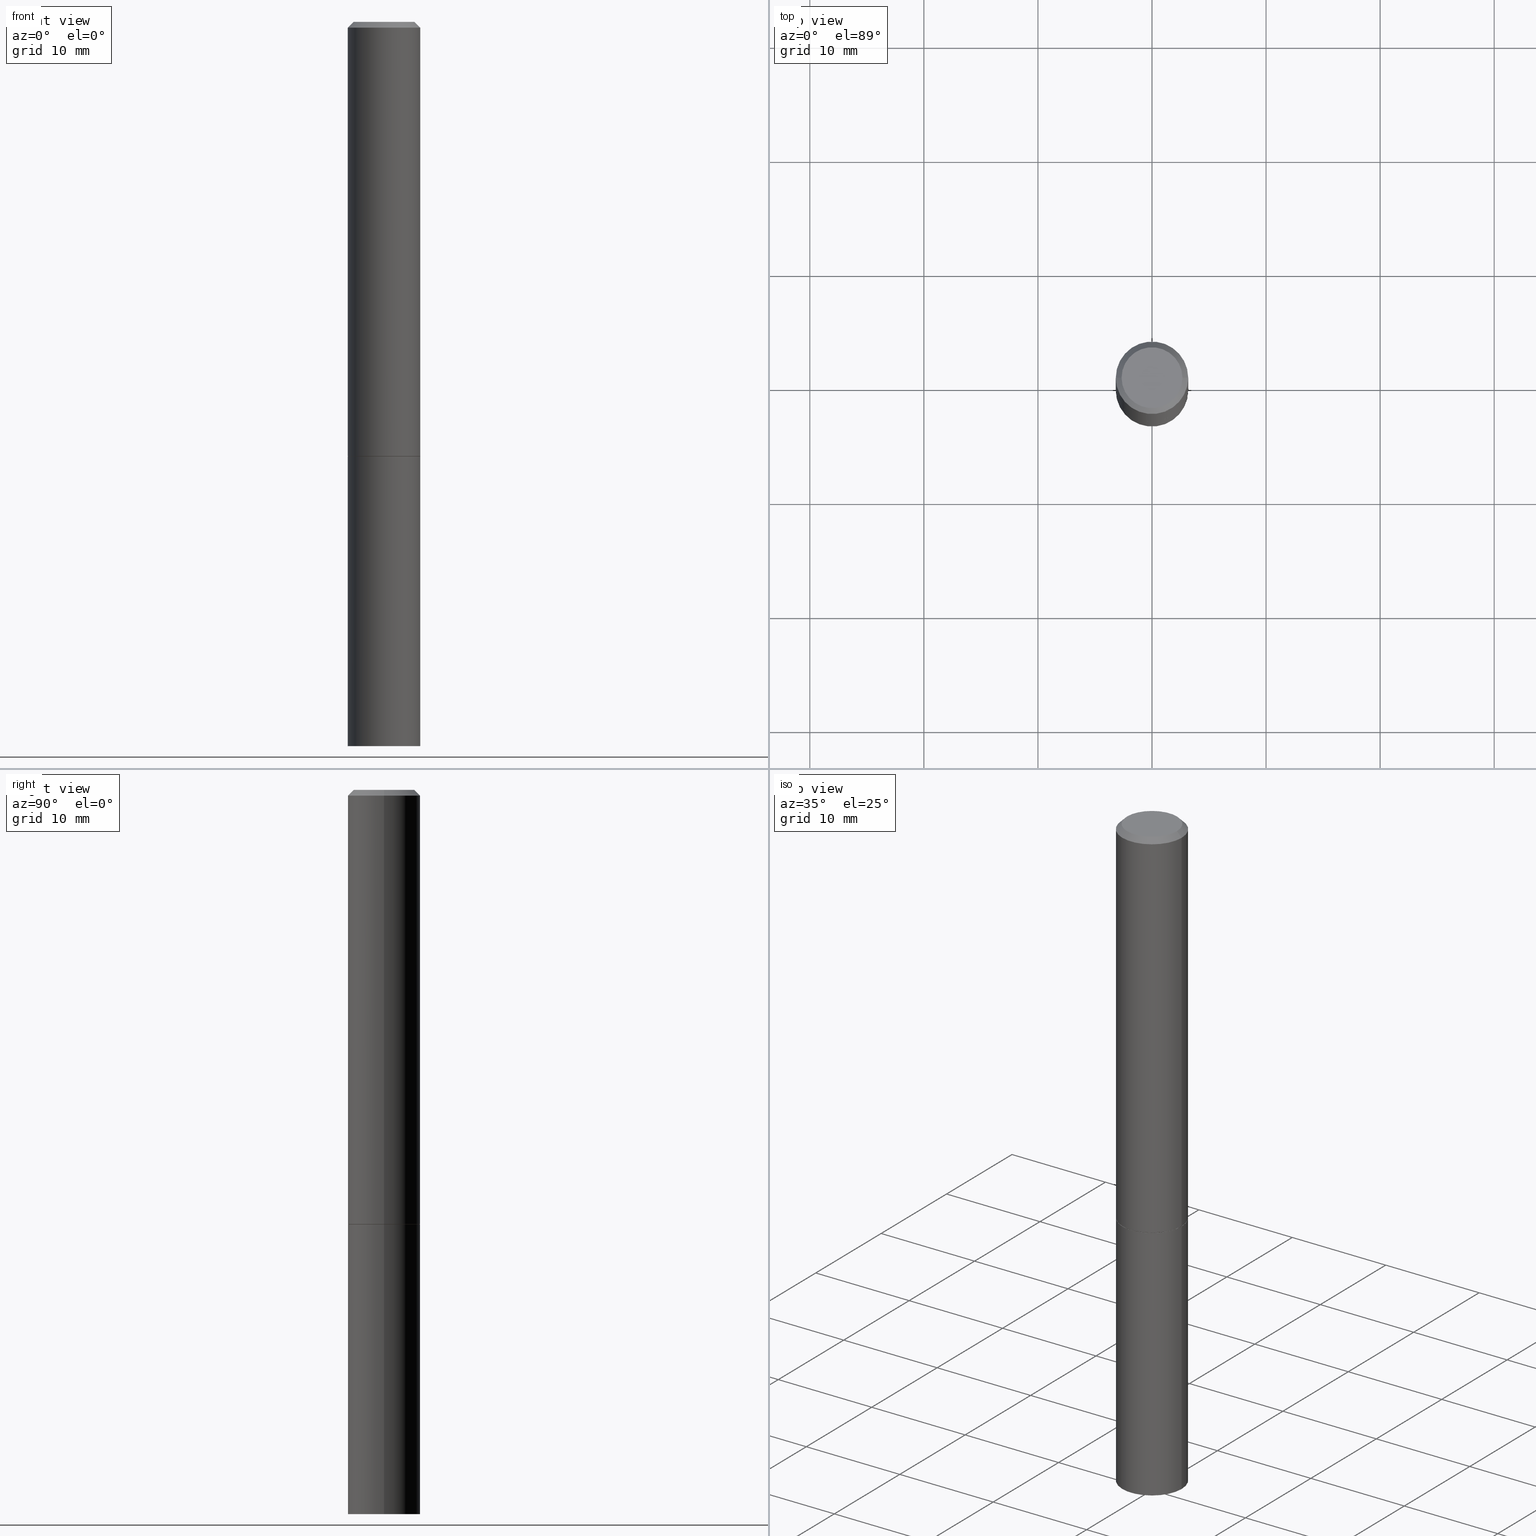
[diagram: canonical four-view strip — front | top / right | iso, engineering-drawing reading convention]
A machine part, canonical four-view strip (front | top / right | iso — engineering-drawing reading convention). The complete STEP part file that produces these views, byte-faithful:
ISO-10303-21;
HEADER;
FILE_DESCRIPTION (( 'STEP AP203' ),
    '1' );
FILE_NAME ('72954.STEP',
    '2024-02-29T04:47:56',
    ( '' ),
    ( '' ),
    'SwSTEP 2.0',
    'SolidWorks 2023',
    '' );
FILE_SCHEMA (( 'CONFIG_CONTROL_DESIGN' ));
ENDSEC;

DATA;
#1 = EDGE_CURVE ( 'NONE', #345, #261, #189, .T. ) ;
#2 = PRODUCT ( '72954', '72954', '', ( #91 ) ) ;
#3 = COORDINATED_UNIVERSAL_TIME_OFFSET ( 5, 0, .BEHIND. ) ;
#4 = EDGE_CURVE ( 'NONE', #39, #131, #83, .T. ) ;
#5 = CARTESIAN_POINT ( 'NONE',  ( 0.1239999999999999991, -6.103109380297813924E-15, -1.499999999999999778 ) ) ;
#6 = CIRCLE ( 'NONE', #320, 0.1239999999999999991 ) ;
#7 = VECTOR ( 'NONE', #357, 39.37007874015748143 ) ;
#8 = CARTESIAN_POINT ( 'NONE',  ( -0.1049999999999998018, 7.681258945454876027E-16, -1.707404996040689597E-17 ) ) ;
#9 = ORIENTED_EDGE ( 'NONE', *, *, #51, .F. ) ;
#10 = DIRECTION ( 'NONE',  ( -1.000000000000000000, 6.982962677686266711E-15, 0.000000000000000000 ) ) ;
#11 = ORIENTED_EDGE ( 'NONE', *, *, #192, .T. ) ;
#12 = VERTEX_POINT ( 'NONE', #104 ) ;
#13 = DESIGN_CONTEXT ( 'detailed design', #77, 'design' ) ;
#14 = AXIS2_PLACEMENT_3D ( 'NONE', #124, #313, #230 ) ;
#15 = FACE_OUTER_BOUND ( 'NONE', #132, .T. ) ;
#16 = ORIENTED_EDGE ( 'NONE', *, *, #236, .T. ) ;
#17 = CC_DESIGN_DATE_AND_TIME_ASSIGNMENT ( #312, #335, ( #157 ) ) ;
#18 = EDGE_CURVE ( 'NONE', #214, #176, #343, .T. ) ;
#19 = DIRECTION ( 'NONE',  ( 1.000000000000000000, -6.982962677686266711E-15, 4.876176775795935793E-29 ) ) ;
#20 = CARTESIAN_POINT ( 'NONE',  ( 0.1250000000000000000, -6.110092342975501516E-15, -1.500000000000000222 ) ) ;
#21 =( NAMED_UNIT ( * ) SI_UNIT ( $, .STERADIAN. ) SOLID_ANGLE_UNIT ( ) );
#22 = CARTESIAN_POINT ( 'NONE',  ( 0.000000000000000000, 0.000000000000000000, 0.000000000000000000 ) ) ;
#23 = AXIS2_PLACEMENT_3D ( 'NONE', #143, #360, #171 ) ;
#24 = CARTESIAN_POINT ( 'NONE',  ( 0.000000000000000000, 0.000000000000000000, 0.000000000000000000 ) ) ;
#25 = FACE_OUTER_BOUND ( 'NONE', #128, .T. ) ;
#26 = DIRECTION ( 'NONE',  ( 1.000000000000000000, -6.982962677686262766E-15, 0.000000000000000000 ) ) ;
#27 = ADVANCED_FACE ( 'NONE', ( #88 ), #95, .T. ) ;
#28 = AXIS2_PLACEMENT_3D ( 'NONE', #221, #113, #142 ) ;
#29 = CALENDAR_DATE ( 2024, 28, 2 ) ;
#30 = DIRECTION ( 'NONE',  ( -2.445468806185136597E-29, 3.491481338843145583E-15, 1.000000000000000000 ) ) ;
#31 = DATE_AND_TIME ( #153, #249 ) ;
#32 = PERSON_AND_ORGANIZATION ( #158, #36 ) ;
#33 = FACE_OUTER_BOUND ( 'NONE', #323, .T. ) ;
#34 = AXIS2_PLACEMENT_3D ( 'NONE', #300, #194, #250 ) ;
#35 = PERSON_AND_ORGANIZATION_ROLE ( 'creator' ) ;
#36 = ORGANIZATION ( 'UNSPECIFIED', 'UNSPECIFIED', '' ) ;
#37 = DIRECTION ( 'NONE',  ( 1.000000000000000000, -6.982962677686265922E-15, 4.876206205277402997E-29 ) ) ;
#38 = EDGE_LOOP ( 'NONE', ( #45, #270, #185, #207 ) ) ;
#39 = VERTEX_POINT ( 'NONE', #303 ) ;
#40 = ORIENTED_EDGE ( 'NONE', *, *, #4, .T. ) ;
#41 = UNCERTAINTY_MEASURE_WITH_UNIT (LENGTH_MEASURE( 1.000000000000000082E-05 ), #111, 'distance_accuracy_value', 'NONE');
#42 = CC_DESIGN_DATE_AND_TIME_ASSIGNMENT ( #31, #98, ( #301 ) ) ;
#43 = EDGE_LOOP ( 'NONE', ( #73, #210, #154, #347 ) ) ;
#44 = DIMENSIONAL_EXPONENTS ( 1.000000000000000000, 0.000000000000000000, 0.000000000000000000, 0.000000000000000000, 0.000000000000000000, 0.000000000000000000, 0.000000000000000000 ) ;
#45 = ORIENTED_EDGE ( 'NONE', *, *, #62, .T. ) ;
#46 = CLOSED_SHELL ( 'NONE', ( #184, #231, #27, #199, #243, #105, #241, #220 ) ) ;
#47 = FACE_OUTER_BOUND ( 'NONE', #38, .T. ) ;
#48 = CARTESIAN_POINT ( 'NONE',  ( 4.890937612370284544E-31, -6.982962677686307633E-17, -0.02000000000000004552 ) ) ;
#49 = DIRECTION ( 'NONE',  ( -2.438088387897960049E-29, 3.491481338843145188E-15, 1.000000000000000000 ) ) ;
#50 = DIRECTION ( 'NONE',  ( -2.445468806185136597E-29, 3.491481338843145583E-15, 1.000000000000000000 ) ) ;
#51 = EDGE_CURVE ( 'NONE', #131, #39, #275, .T. ) ;
#52 = PERSON_AND_ORGANIZATION_ROLE ( 'design_owner' ) ;
#53 = CARTESIAN_POINT ( 'NONE',  ( 3.668203209277704335E-29, -5.237222008264717388E-15, -1.499999999999999778 ) ) ;
#54 = ADVANCED_BREP_SHAPE_REPRESENTATION ( '72954', ( #204, #93, #321 ), #102 ) ;
#55 = DIRECTION ( 'NONE',  ( -2.445468806185136597E-29, 3.491481338843145583E-15, 1.000000000000000000 ) ) ;
#56 = DIRECTION ( 'NONE',  ( -1.000000000000000000, 6.982962677686265922E-15, -4.876176775795935793E-29 ) ) ;
#57 = CARTESIAN_POINT ( 'NONE',  ( 0.000000000000000000, 0.000000000000000000, 0.000000000000000000 ) ) ;
#58 = LINE ( 'NONE', #251, #139 ) ;
#59 = DIRECTION ( 'NONE',  ( -2.445468806185136597E-29, 3.491481338843145583E-15, 1.000000000000000000 ) ) ;
#60 = PRODUCT_DEFINITION_SHAPE ( 'NONE', 'NONE',  #301 ) ;
#61 = APPROVAL_STATUS ( 'not_yet_approved' ) ;
#62 = EDGE_CURVE ( 'NONE', #261, #66, #304, .T. ) ;
#63 = CIRCLE ( 'NONE', #254, 0.1249999999999997780 ) ;
#64 = CARTESIAN_POINT ( 'NONE',  ( -0.1250000000000000000, 8.881784197001252323E-16, -6.148668862818632227E-30 ) ) ;
#65 = LOCAL_TIME ( 23, 47, 56.00000000000000000, #179 ) ;
#66 = VERTEX_POINT ( 'NONE', #356 ) ;
#67 = APPROVAL_STATUS ( 'not_yet_approved' ) ;
#68 = LINE ( 'NONE', #363, #133 ) ;
#69 = AXIS2_PLACEMENT_3D ( 'NONE', #48, #252, #112 ) ;
#70 = AXIS2_PLACEMENT_3D ( 'NONE', #84, #276, #89 ) ;
#71 = PERSON_AND_ORGANIZATION ( #158, #36 ) ;
#72 = CARTESIAN_POINT ( 'NONE',  ( 4.890937612370284544E-31, -6.982962677686307633E-17, -0.02000000000000004552 ) ) ;
#73 = ORIENTED_EDGE ( 'NONE', *, *, #97, .T. ) ;
#74 = ORIENTED_EDGE ( 'NONE', *, *, #236, .F. ) ;
#75 = AXIS2_PLACEMENT_3D ( 'NONE', #114, #50, #273 ) ;
#76 = ADVANCED_FACE ( 'NONE', ( #215 ), #198, .T. ) ;
#77 = APPLICATION_CONTEXT ( 'configuration controlled 3d designs of mechanical parts and assemblies' ) ;
#78 = ORIENTED_EDGE ( 'NONE', *, *, #182, .F. ) ;
#79 = ORIENTED_EDGE ( 'NONE', *, *, #309, .F. ) ;
#80 = ADVANCED_FACE ( 'NONE', ( #25 ), #138, .T. ) ;
#81 = LINE ( 'NONE', #271, #7 ) ;
#82 = ORIENTED_EDGE ( 'NONE', *, *, #51, .T. ) ;
#83 = CIRCLE ( 'NONE', #359, 0.1250000000000000000 ) ;
#84 = CARTESIAN_POINT ( 'NONE',  ( 3.668203209277704895E-29, -5.237222008264718177E-15, -1.500000000000000222 ) ) ;
#85 = DIRECTION ( 'NONE',  ( 1.000000000000000000, -6.982962677686262766E-15, 0.000000000000000000 ) ) ;
#86 = PLANE ( 'NONE',  #339 ) ;
#87 = LINE ( 'NONE', #278, #191 ) ;
#88 = FACE_OUTER_BOUND ( 'NONE', #318, .T. ) ;
#89 = DIRECTION ( 'NONE',  ( 1.000000000000000000, -6.982962677686262766E-15, 0.000000000000000000 ) ) ;
#90 = CARTESIAN_POINT ( 'NONE',  ( 6.113672015462842613E-29, -8.728703347107864943E-15, -2.500000000000000000 ) ) ;
#91 = MECHANICAL_CONTEXT ( 'NONE', #262, 'mechanical' ) ;
#92 = APPROVAL_ROLE ( '' ) ;
#93 = MANIFOLD_SOLID_BREP ( 'Body-Move/Copy2[2]', #46 ) ;
#94 = ORIENTED_EDGE ( 'NONE', *, *, #126, .T. ) ;
#95 = CONICAL_SURFACE ( 'NONE', #69, 0.1249999999999997780, 0.7853981633974469467 ) ;
#96 = CC_DESIGN_APPROVAL ( #186, ( #157 ) ) ;
#97 = EDGE_CURVE ( 'NONE', #345, #239, #6, .T. ) ;
#98 = DATE_TIME_ROLE ( 'creation_date' ) ;
#99 = CARTESIAN_POINT ( 'NONE',  ( 0.1250000000000000000, -9.601573681818648281E-15, -2.500000000000000000 ) ) ;
#100 = DATE_AND_TIME ( #284, #201 ) ;
#101 = APPROVAL_DATE_TIME ( #181, #186 ) ;
#102 =( GEOMETRIC_REPRESENTATION_CONTEXT ( 3 ) GLOBAL_UNCERTAINTY_ASSIGNED_CONTEXT ( ( #41 ) ) GLOBAL_UNIT_ASSIGNED_CONTEXT ( ( #111, #298, #21 ) ) REPRESENTATION_CONTEXT ( 'NONE', 'WORKASPACE' ) );
#103 = DIRECTION ( 'NONE',  ( 0.7071067811866199593, -2.468850131083015945E-15, 0.7071067811864750752 ) ) ;
#104 = CARTESIAN_POINT ( 'NONE',  ( 0.1249999999999997780, -9.273918764983029686E-16, -0.02000000000000004552 ) ) ;
#105 = ADVANCED_FACE ( 'NONE', ( #354 ), #286, .T. ) ;
#106 = ORIENTED_EDGE ( 'NONE', *, *, #4, .F. ) ;
#107 = VECTOR ( 'NONE', #103, 39.37007874015748143 ) ;
#108 = VERTEX_POINT ( 'NONE', #20 ) ;
#109 = CYLINDRICAL_SURFACE ( 'NONE', #353, 0.1250000000000000000 ) ;
#110 = EDGE_LOOP ( 'NONE', ( #162, #257, #267, #255 ) ) ;
#111 =( CONVERSION_BASED_UNIT ( 'INCH', #348 ) LENGTH_UNIT ( ) NAMED_UNIT ( #44 ) );
#112 = DIRECTION ( 'NONE',  ( -1.000000000000000000, 6.982962677686266711E-15, 0.000000000000000000 ) ) ;
#113 = DIRECTION ( 'NONE',  ( -2.445468806185136597E-29, 3.491481338843145583E-15, 1.000000000000000000 ) ) ;
#114 = CARTESIAN_POINT ( 'NONE',  ( 3.665757740471519853E-29, -5.233730526925875958E-15, -1.499000000000000110 ) ) ;
#115 = CYLINDRICAL_SURFACE ( 'NONE', #28, 0.1249999999999999029 ) ;
#116 = CARTESIAN_POINT ( 'NONE',  ( 0.000000000000000000, 0.000000000000000000, 0.000000000000000000 ) ) ;
#117 = DIRECTION ( 'NONE',  ( -2.445468806185136597E-29, 3.491481338843145583E-15, 1.000000000000000000 ) ) ;
#118 = AXIS2_PLACEMENT_3D ( 'NONE', #22, #302, #351 ) ;
#119 = LINE ( 'NONE', #64, #269 ) ;
#120 = EDGE_CURVE ( 'NONE', #293, #108, #149, .T. ) ;
#121 = PERSON_AND_ORGANIZATION ( #158, #36 ) ;
#122 = AXIS2_PLACEMENT_3D ( 'NONE', #248, #328, #56 ) ;
#123 = CIRCLE ( 'NONE', #344, 0.1249999999999997780 ) ;
#124 = CARTESIAN_POINT ( 'NONE',  ( 8.728703347108198236E-16, 0.1249999999999947542, -1.500000000000000666 ) ) ;
#125 = COORDINATED_UNIVERSAL_TIME_OFFSET ( 5, 0, .BEHIND. ) ;
#126 = EDGE_CURVE ( 'NONE', #66, #261, #233, .T. ) ;
#127 = AXIS2_PLACEMENT_3D ( 'NONE', #342, #222, #307 ) ;
#128 = EDGE_LOOP ( 'NONE', ( #9, #106 ) ) ;
#129 = EDGE_CURVE ( 'NONE', #66, #317, #219, .T. ) ;
#130 = CARTESIAN_POINT ( 'NONE',  ( 6.113672015462842613E-29, -8.728703347107864943E-15, -2.500000000000000000 ) ) ;
#131 = VERTEX_POINT ( 'NONE', #99 ) ;
#132 = EDGE_LOOP ( 'NONE', ( #160, #292, #11, #16 ) ) ;
#133 = VECTOR ( 'NONE', #311, 39.37007874015748143 ) ;
#134 = ORIENTED_EDGE ( 'NONE', *, *, #182, .T. ) ;
#135 = ADVANCED_FACE ( 'NONE', ( #33 ), #280, .F. ) ;
#136 = CARTESIAN_POINT ( 'NONE',  ( 3.668203209277704895E-29, -5.237222008264718177E-15, -1.500000000000000222 ) ) ;
#137 = DIRECTION ( 'NONE',  ( 1.000000000000000000, -6.982962677686265922E-15, 4.876176775795935793E-29 ) ) ;
#138 = PLANE ( 'NONE',  #122 ) ;
#139 = VECTOR ( 'NONE', #329, 39.37007874015748143 ) ;
#140 = CARTESIAN_POINT ( 'NONE',  ( 4.890937612370284544E-31, -6.982962677686307633E-17, -0.02000000000000004552 ) ) ;
#141 = EDGE_CURVE ( 'NONE', #261, #12, #68, .T. ) ;
#142 = DIRECTION ( 'NONE',  ( 1.000000000000000000, -6.982962677686266711E-15, 4.876176775795935793E-29 ) ) ;
#143 = CARTESIAN_POINT ( 'NONE',  ( 3.665757740471519853E-29, -5.233730526925875958E-15, -1.499000000000000110 ) ) ;
#144 = CARTESIAN_POINT ( 'NONE',  ( -0.1249999999999999029, 8.881784197001245421E-16, -6.148668862818627323E-30 ) ) ;
#145 = DIRECTION ( 'NONE',  ( 1.000000000000000000, -6.982962677686262766E-15, 0.000000000000000000 ) ) ;
#146 = EDGE_LOOP ( 'NONE', ( #82, #322, #289, #288 ) ) ;
#147 = APPROVAL_ROLE ( '' ) ;
#148 = CIRCLE ( 'NONE', #216, 0.1049999999999998018 ) ;
#149 = CIRCLE ( 'NONE', #352, 0.1250000000000000000 ) ;
#150 = CARTESIAN_POINT ( 'NONE',  ( 3.668203209277704335E-29, -5.237222008264717388E-15, -1.499999999999999778 ) ) ;
#151 = LOCAL_TIME ( 23, 47, 56.00000000000000000, #232 ) ;
#152 = PERSON_AND_ORGANIZATION ( #158, #36 ) ;
#153 = CALENDAR_DATE ( 2024, 28, 2 ) ;
#154 = ORIENTED_EDGE ( 'NONE', *, *, #62, .F. ) ;
#155 = LINE ( 'NONE', #338, #163 ) ;
#156 = ORIENTED_EDGE ( 'NONE', *, *, #120, .F. ) ;
#157 = SECURITY_CLASSIFICATION ( '', '', #235 ) ;
#158 = PERSON ( 'UNSPECIFIED', 'UNSPECIFIED', 'UNSPECIFIED', ('UNSPECIFIED'), ('UNSPECIFIED'), ('UNSPECIFIED') ) ;
#159 = EDGE_CURVE ( 'NONE', #39, #293, #119, .T. ) ;
#160 = ORIENTED_EDGE ( 'NONE', *, *, #265, .F. ) ;
#161 = ORIENTED_EDGE ( 'NONE', *, *, #120, .T. ) ;
#162 = ORIENTED_EDGE ( 'NONE', *, *, #246, .F. ) ;
#163 = VECTOR ( 'NONE', #266, 39.37007874015748143 ) ;
#164 = APPROVAL_PERSON_ORGANIZATION ( #310, #188, #205 ) ;
#165 = CARTESIAN_POINT ( 'NONE',  ( -0.1250000000000000000, -6.094784257986165933E-15, -1.500000000000000222 ) ) ;
#166 = DIRECTION ( 'NONE',  ( 1.000000000000000000, -6.982962677686270655E-15, 0.000000000000000000 ) ) ;
#167 = DIRECTION ( 'NONE',  ( -2.445468806185136597E-29, 3.491481338843145583E-15, 1.000000000000000000 ) ) ;
#168 = CC_DESIGN_PERSON_AND_ORGANIZATION_ASSIGNMENT ( #299, #52, ( #2 ) ) ;
#169 = CARTESIAN_POINT ( 'NONE',  ( 4.890937612370284544E-31, -6.982962677686307633E-17, -0.02000000000000004552 ) ) ;
#170 = DIRECTION ( 'NONE',  ( 1.000000000000000000, -6.982962677686266711E-15, 0.000000000000000000 ) ) ;
#171 = DIRECTION ( 'NONE',  ( 1.000000000000000000, -6.982962677686262766E-15, 0.000000000000000000 ) ) ;
#172 = CARTESIAN_POINT ( 'NONE',  ( -0.1239999999999999991, -4.350850561573971550E-15, -1.499999999999999778 ) ) ;
#173 = DIRECTION ( 'NONE',  ( 1.000000000000000000, -6.982962677686262766E-15, 0.000000000000000000 ) ) ;
#174 = COORDINATED_UNIVERSAL_TIME_OFFSET ( 5, 0, .BEHIND. ) ;
#175 = DIRECTION ( 'NONE',  ( -2.445468806185136877E-29, 3.491481338843145188E-15, 1.000000000000000000 ) ) ;
#176 = VERTEX_POINT ( 'NONE', #178 ) ;
#177 = APPROVAL_STATUS ( 'not_yet_approved' ) ;
#178 = CARTESIAN_POINT ( 'NONE',  ( 0.1049999999999998018, -8.238720831321562839E-16, -1.707404996039620013E-17 ) ) ;
#179 = COORDINATED_UNIVERSAL_TIME_OFFSET ( 5, 0, .BEHIND. ) ;
#180 = VECTOR ( 'NONE', #200, 39.37007874015748143 ) ;
#181 = DATE_AND_TIME ( #227, #259 ) ;
#182 = EDGE_CURVE ( 'NONE', #176, #214, #148, .T. ) ;
#183 = EDGE_LOOP ( 'NONE', ( #187, #134 ) ) ;
#184 = ADVANCED_FACE ( 'NONE', ( #336 ), #290, .T. ) ;
#185 = ORIENTED_EDGE ( 'NONE', *, *, #324, .F. ) ;
#186 = APPROVAL ( #177, 'UNSPECIFIED' ) ;
#187 = ORIENTED_EDGE ( 'NONE', *, *, #18, .T. ) ;
#188 = APPROVAL ( #67, 'UNSPECIFIED' ) ;
#189 = LINE ( 'NONE', #5, #107 ) ;
#190 =( LENGTH_UNIT ( ) NAMED_UNIT ( * ) SI_UNIT ( $, .METRE. ) );
#191 = VECTOR ( 'NONE', #193, 39.37007874015748143 ) ;
#192 = EDGE_CURVE ( 'NONE', #214, #317, #155, .T. ) ;
#193 = DIRECTION ( 'NONE',  ( -0.7071067811866199593, 7.493145998870616062E-15, 0.7071067811864750752 ) ) ;
#194 = DIRECTION ( 'NONE',  ( 2.438088387897960049E-29, -3.491481338843145188E-15, -1.000000000000000000 ) ) ;
#195 = DIRECTION ( 'NONE',  ( -2.445468806185136597E-29, 3.491481338843145583E-15, 1.000000000000000000 ) ) ;
#196 = AXIS2_PLACEMENT_3D ( 'NONE', #72, #209, #10 ) ;
#197 = CIRCLE ( 'NONE', #70, 0.1250000000000000000 ) ;
#198 = CYLINDRICAL_SURFACE ( 'NONE', #237, 0.1250000000000000000 ) ;
#199 = ADVANCED_FACE ( 'NONE', ( #15 ), #333, .T. ) ;
#200 = DIRECTION ( 'NONE',  ( -2.445468806185136877E-29, 3.491481338843145188E-15, 1.000000000000000000 ) ) ;
#201 = LOCAL_TIME ( 23, 47, 56.00000000000000000, #174 ) ;
#202 = DIRECTION ( 'NONE',  ( -2.445468806185136597E-29, 3.491481338843145583E-15, 1.000000000000000000 ) ) ;
#203 = CALENDAR_DATE ( 2024, 28, 2 ) ;
#204 = MANIFOLD_SOLID_BREP ( 'Body-Move/Copy2[1]', #224 ) ;
#205 = APPROVAL_ROLE ( '' ) ;
#206 = DIRECTION ( 'NONE',  ( -2.445468806185136597E-29, 3.491481338843145583E-15, 1.000000000000000000 ) ) ;
#207 = ORIENTED_EDGE ( 'NONE', *, *, #141, .F. ) ;
#208 = CC_DESIGN_PERSON_AND_ORGANIZATION_ASSIGNMENT ( #71, #365, ( #361 ) ) ;
#209 = DIRECTION ( 'NONE',  ( 2.445468806185136597E-29, -3.491481338843145583E-15, -1.000000000000000000 ) ) ;
#210 = ORIENTED_EDGE ( 'NONE', *, *, #246, .T. ) ;
#211 = APPROVAL_PERSON_ORGANIZATION ( #32, #186, #147 ) ;
#212 = ORIENTED_EDGE ( 'NONE', *, *, #308, .T. ) ;
#213 = FACE_OUTER_BOUND ( 'NONE', #245, .T. ) ;
#214 = VERTEX_POINT ( 'NONE', #8 ) ;
#215 = FACE_OUTER_BOUND ( 'NONE', #283, .T. ) ;
#216 = AXIS2_PLACEMENT_3D ( 'NONE', #282, #202, #37 ) ;
#217 = CIRCLE ( 'NONE', #291, 0.1239999999999999991 ) ;
#218 = CARTESIAN_POINT ( 'NONE',  ( -0.1249999999999997780, 8.030407079339186601E-16, -0.02000000000000004552 ) ) ;
#219 = LINE ( 'NONE', #144, #180 ) ;
#220 = ADVANCED_FACE ( 'NONE', ( #274 ), #346, .F. ) ;
#221 = CARTESIAN_POINT ( 'NONE',  ( 0.000000000000000000, 0.000000000000000000, 0.000000000000000000 ) ) ;
#222 = DIRECTION ( 'NONE',  ( -2.445468806185136597E-29, 3.491481338843145583E-15, 1.000000000000000000 ) ) ;
#223 = DIRECTION ( 'NONE',  ( 1.000000000000000000, -6.982962677686266711E-15, 0.000000000000000000 ) ) ;
#224 = CLOSED_SHELL ( 'NONE', ( #316, #80, #135, #76 ) ) ;
#225 = DIRECTION ( 'NONE',  ( 0.000000000000000000, 0.000000000000000000, 1.000000000000000000 ) ) ;
#226 = DIRECTION ( 'NONE',  ( -2.445468806185136597E-29, 3.491481338843145583E-15, 1.000000000000000000 ) ) ;
#227 = CALENDAR_DATE ( 2024, 28, 2 ) ;
#228 = CC_DESIGN_PERSON_AND_ORGANIZATION_ASSIGNMENT ( #121, #337, ( #157 ) ) ;
#229 = APPLICATION_PROTOCOL_DEFINITION ( 'international standard', 'config_control_design', 1994, #77 ) ;
#230 = DIRECTION ( 'NONE',  ( -1.000000000000000000, 6.982962677686265922E-15, -4.876176775795935793E-29 ) ) ;
#231 = ADVANCED_FACE ( 'NONE', ( #47 ), #247, .T. ) ;
#232 = COORDINATED_UNIVERSAL_TIME_OFFSET ( 5, 0, .BEHIND. ) ;
#233 = CIRCLE ( 'NONE', #75, 0.1250000000000000000 ) ;
#234 = PERSON_AND_ORGANIZATION ( #158, #36 ) ;
#235 = SECURITY_CLASSIFICATION_LEVEL ( 'unclassified' ) ;
#236 = EDGE_CURVE ( 'NONE', #317, #12, #63, .T. ) ;
#237 = AXIS2_PLACEMENT_3D ( 'NONE', #116, #195, #358 ) ;
#238 = ORIENTED_EDGE ( 'NONE', *, *, #350, .T. ) ;
#239 = VERTEX_POINT ( 'NONE', #172 ) ;
#240 = DIRECTION ( 'NONE',  ( 1.000000000000000000, -6.982962677686270655E-15, 0.000000000000000000 ) ) ;
#241 = ADVANCED_FACE ( 'NONE', ( #213 ), #86, .F. ) ;
#242 = ORIENTED_EDGE ( 'NONE', *, *, #97, .F. ) ;
#243 = ADVANCED_FACE ( 'NONE', ( #355 ), #115, .T. ) ;
#244 = FACE_OUTER_BOUND ( 'NONE', #146, .T. ) ;
#245 = EDGE_LOOP ( 'NONE', ( #242, #79 ) ) ;
#246 = EDGE_CURVE ( 'NONE', #239, #66, #87, .T. ) ;
#247 = CYLINDRICAL_SURFACE ( 'NONE', #118, 0.1249999999999999029 ) ;
#248 = CARTESIAN_POINT ( 'NONE',  ( 8.728703347108443769E-16, 0.1249999999999912709, -2.500000000000000444 ) ) ;
#249 = LOCAL_TIME ( 23, 47, 56.00000000000000000, #125 ) ;
#250 = DIRECTION ( 'NONE',  ( -1.000000000000000000, 6.982962677686265922E-15, -4.876176775795935793E-29 ) ) ;
#251 = CARTESIAN_POINT ( 'NONE',  ( 0.1249999999999997780, -9.273918764983029686E-16, -0.02000000000000004552 ) ) ;
#252 = DIRECTION ( 'NONE',  ( 2.445468806185136597E-29, -3.491481338843145583E-15, -1.000000000000000000 ) ) ;
#253 = APPROVAL ( #61, 'UNSPECIFIED' ) ;
#254 = AXIS2_PLACEMENT_3D ( 'NONE', #140, #306, #223 ) ;
#255 = ORIENTED_EDGE ( 'NONE', *, *, #126, .F. ) ;
#256 = PERSON_AND_ORGANIZATION ( #158, #36 ) ;
#257 = ORIENTED_EDGE ( 'NONE', *, *, #309, .T. ) ;
#258 = SHAPE_DEFINITION_REPRESENTATION ( #60, #54 ) ;
#259 = LOCAL_TIME ( 23, 47, 56.00000000000000000, #3 ) ;
#260 = PERSON_AND_ORGANIZATION_ROLE ( 'creator' ) ;
#261 = VERTEX_POINT ( 'NONE', #327 ) ;
#262 = APPLICATION_CONTEXT ( 'configuration controlled 3d designs of mechanical parts and assemblies' ) ;
#263 = CC_DESIGN_SECURITY_CLASSIFICATION ( #157, ( #361 ) ) ;
#264 = ORIENTED_EDGE ( 'NONE', *, *, #159, .F. ) ;
#265 = EDGE_CURVE ( 'NONE', #176, #12, #58, .T. ) ;
#266 = DIRECTION ( 'NONE',  ( -0.7071067811865465735, 2.468850131082246805E-15, -0.7071067811865484609 ) ) ;
#267 = ORIENTED_EDGE ( 'NONE', *, *, #1, .T. ) ;
#268 = EDGE_LOOP ( 'NONE', ( #294, #94, #325, #74 ) ) ;
#269 = VECTOR ( 'NONE', #175, 39.37007874015748143 ) ;
#270 = ORIENTED_EDGE ( 'NONE', *, *, #129, .T. ) ;
#271 = CARTESIAN_POINT ( 'NONE',  ( 0.1250000000000000000, -8.728703347107833388E-16, 6.095220969744919741E-30 ) ) ;
#272 = DIRECTION ( 'NONE',  ( 1.000000000000000000, -6.982962677686262766E-15, 0.000000000000000000 ) ) ;
#273 = DIRECTION ( 'NONE',  ( 1.000000000000000000, -6.982962677686262766E-15, 0.000000000000000000 ) ) ;
#274 = FACE_OUTER_BOUND ( 'NONE', #183, .T. ) ;
#275 = CIRCLE ( 'NONE', #296, 0.1250000000000000000 ) ;
#276 = DIRECTION ( 'NONE',  ( -2.445468806185136597E-29, 3.491481338843145583E-15, 1.000000000000000000 ) ) ;
#277 = CARTESIAN_POINT ( 'NONE',  ( 3.668203209277704335E-29, -5.237222008264717388E-15, -1.499999999999999778 ) ) ;
#278 = CARTESIAN_POINT ( 'NONE',  ( -0.1239999999999999991, -4.356149015922193953E-15, -1.499999999999999778 ) ) ;
#279 = CARTESIAN_POINT ( 'NONE',  ( 3.668203209277704335E-29, -5.237222008264717388E-15, -1.499999999999999778 ) ) ;
#280 = PLANE ( 'NONE',  #14 ) ;
#281 = AXIS2_PLACEMENT_3D ( 'NONE', #150, #30, #145 ) ;
#282 = CARTESIAN_POINT ( 'NONE',  ( 4.175405657340879278E-46, -5.961372681521788801E-32, -1.707404996040164512E-17 ) ) ;
#283 = EDGE_LOOP ( 'NONE', ( #264, #40, #212, #156 ) ) ;
#284 = CALENDAR_DATE ( 2024, 28, 2 ) ;
#285 = APPLICATION_PROTOCOL_DEFINITION ( 'international standard', 'config_control_design', 1994, #262 ) ;
#286 = CONICAL_SURFACE ( 'NONE', #314, 0.1239999999999999991, 0.7853981633975507526 ) ;
#287 = DATE_AND_TIME ( #203, #65 ) ;
#288 = ORIENTED_EDGE ( 'NONE', *, *, #308, .F. ) ;
#289 = ORIENTED_EDGE ( 'NONE', *, *, #350, .F. ) ;
#290 = CONICAL_SURFACE ( 'NONE', #281, 0.1239999999999999991, 0.7853981633975507526 ) ;
#291 = AXIS2_PLACEMENT_3D ( 'NONE', #53, #117, #26 ) ;
#292 = ORIENTED_EDGE ( 'NONE', *, *, #18, .F. ) ;
#293 = VERTEX_POINT ( 'NONE', #165 ) ;
#294 = ORIENTED_EDGE ( 'NONE', *, *, #129, .F. ) ;
#295 = CARTESIAN_POINT ( 'NONE',  ( 3.668203209277704335E-29, -5.237222008264717388E-15, -1.499999999999999778 ) ) ;
#296 = AXIS2_PLACEMENT_3D ( 'NONE', #90, #167, #166 ) ;
#297 = CC_DESIGN_APPROVAL ( #253, ( #301 ) ) ;
#298 =( NAMED_UNIT ( * ) PLANE_ANGLE_UNIT ( ) SI_UNIT ( $, .RADIAN. ) );
#299 = PERSON_AND_ORGANIZATION ( #158, #36 ) ;
#300 = CARTESIAN_POINT ( 'NONE',  ( 7.332110811570565452E-16, 0.1049999999999998018, -3.751425655587304572E-16 ) ) ;
#301 = PRODUCT_DEFINITION ( 'UNKNOWN', '', #361, #13 ) ;
#302 = DIRECTION ( 'NONE',  ( -2.445468806185136597E-29, 3.491481338843145583E-15, 1.000000000000000000 ) ) ;
#303 = CARTESIAN_POINT ( 'NONE',  ( -0.1250000000000000000, -6.094784257986165933E-15, -2.500000000000000000 ) ) ;
#304 = CIRCLE ( 'NONE', #23, 0.1250000000000000000 ) ;
#305 = CC_DESIGN_PERSON_AND_ORGANIZATION_ASSIGNMENT ( #152, #35, ( #361 ) ) ;
#306 = DIRECTION ( 'NONE',  ( -2.445468806185136597E-29, 3.491481338843145583E-15, 1.000000000000000000 ) ) ;
#307 = DIRECTION ( 'NONE',  ( 1.000000000000000000, -6.982962677686265922E-15, 4.876206205277402997E-29 ) ) ;
#308 = EDGE_CURVE ( 'NONE', #131, #108, #81, .T. ) ;
#309 = EDGE_CURVE ( 'NONE', #239, #345, #217, .T. ) ;
#310 = PERSON_AND_ORGANIZATION ( #158, #36 ) ;
#311 = DIRECTION ( 'NONE',  ( -2.445468806185136877E-29, 3.491481338843145188E-15, 1.000000000000000000 ) ) ;
#312 = DATE_AND_TIME ( #29, #151 ) ;
#313 = DIRECTION ( 'NONE',  ( 2.438088387897960049E-29, -3.491481338843145188E-15, -1.000000000000000000 ) ) ;
#314 = AXIS2_PLACEMENT_3D ( 'NONE', #279, #226, #272 ) ;
#315 = APPROVAL_PERSON_ORGANIZATION ( #234, #253, #92 ) ;
#316 = ADVANCED_FACE ( 'NONE', ( #244 ), #109, .T. ) ;
#317 = VERTEX_POINT ( 'NONE', #218 ) ;
#318 = EDGE_LOOP ( 'NONE', ( #78, #341, #340, #364 ) ) ;
#319 = PRODUCT_RELATED_PRODUCT_CATEGORY ( 'detail', '', ( #2 ) ) ;
#320 = AXIS2_PLACEMENT_3D ( 'NONE', #277, #59, #173 ) ;
#321 = AXIS2_PLACEMENT_3D ( 'NONE', #57, #225, #331 ) ;
#322 = ORIENTED_EDGE ( 'NONE', *, *, #159, .T. ) ;
#323 = EDGE_LOOP ( 'NONE', ( #238, #161 ) ) ;
#324 = EDGE_CURVE ( 'NONE', #12, #317, #123, .T. ) ;
#325 = ORIENTED_EDGE ( 'NONE', *, *, #141, .T. ) ;
#326 = DIRECTION ( 'NONE',  ( -2.445468806185136597E-29, 3.491481338843145583E-15, 1.000000000000000000 ) ) ;
#327 = CARTESIAN_POINT ( 'NONE',  ( 0.1250000000000000000, -6.106600861636658508E-15, -1.499000000000000110 ) ) ;
#328 = DIRECTION ( 'NONE',  ( 2.438088387897960049E-29, -3.491481338843145188E-15, -1.000000000000000000 ) ) ;
#329 = DIRECTION ( 'NONE',  ( 0.7071067811865465735, -7.319954787623252890E-15, -0.7071067811865484609 ) ) ;
#330 = CARTESIAN_POINT ( 'NONE',  ( 0.1239999999999999991, -6.103109380297813924E-15, -1.499999999999999778 ) ) ;
#331 = DIRECTION ( 'NONE',  ( 1.000000000000000000, 0.000000000000000000, 0.000000000000000000 ) ) ;
#332 = APPROVAL_DATE_TIME ( #287, #253 ) ;
#333 = CONICAL_SURFACE ( 'NONE', #196, 0.1249999999999997780, 0.7853981633974469467 ) ;
#334 = CC_DESIGN_APPROVAL ( #188, ( #361 ) ) ;
#335 = DATE_TIME_ROLE ( 'classification_date' ) ;
#336 = FACE_OUTER_BOUND ( 'NONE', #43, .T. ) ;
#337 = PERSON_AND_ORGANIZATION_ROLE ( 'classification_officer' ) ;
#338 = CARTESIAN_POINT ( 'NONE',  ( -0.1249999999999997780, 8.030407079339186601E-16, -0.02000000000000004552 ) ) ;
#339 = AXIS2_PLACEMENT_3D ( 'NONE', #295, #49, #137 ) ;
#340 = ORIENTED_EDGE ( 'NONE', *, *, #324, .T. ) ;
#341 = ORIENTED_EDGE ( 'NONE', *, *, #265, .T. ) ;
#342 = CARTESIAN_POINT ( 'NONE',  ( 4.175405657340879278E-46, -5.961372681521788801E-32, -1.707404996040164512E-17 ) ) ;
#343 = CIRCLE ( 'NONE', #127, 0.1049999999999998018 ) ;
#344 = AXIS2_PLACEMENT_3D ( 'NONE', #169, #55, #170 ) ;
#345 = VERTEX_POINT ( 'NONE', #330 ) ;
#346 = PLANE ( 'NONE',  #34 ) ;
#347 = ORIENTED_EDGE ( 'NONE', *, *, #1, .F. ) ;
#348 = LENGTH_MEASURE_WITH_UNIT ( LENGTH_MEASURE( 0.02539999999999999897 ), #190 );
#349 = DIRECTION ( 'NONE',  ( -2.445468806185136597E-29, 3.491481338843145583E-15, 1.000000000000000000 ) ) ;
#350 = EDGE_CURVE ( 'NONE', #108, #293, #197, .T. ) ;
#351 = DIRECTION ( 'NONE',  ( 1.000000000000000000, -6.982962677686266711E-15, 4.876176775795935793E-29 ) ) ;
#352 = AXIS2_PLACEMENT_3D ( 'NONE', #136, #349, #85 ) ;
#353 = AXIS2_PLACEMENT_3D ( 'NONE', #24, #326, #19 ) ;
#354 = FACE_OUTER_BOUND ( 'NONE', #110, .T. ) ;
#355 = FACE_OUTER_BOUND ( 'NONE', #268, .T. ) ;
#356 = CARTESIAN_POINT ( 'NONE',  ( -0.1250000000000000278, -1.763601657151242227E-15, -1.499000000000000110 ) ) ;
#357 = DIRECTION ( 'NONE',  ( -2.445468806185136877E-29, 3.491481338843145188E-15, 1.000000000000000000 ) ) ;
#358 = DIRECTION ( 'NONE',  ( 1.000000000000000000, -6.982962677686266711E-15, 4.876176775795935793E-29 ) ) ;
#359 = AXIS2_PLACEMENT_3D ( 'NONE', #130, #206, #240 ) ;
#360 = DIRECTION ( 'NONE',  ( -2.445468806185136597E-29, 3.491481338843145583E-15, 1.000000000000000000 ) ) ;
#361 = PRODUCT_DEFINITION_FORMATION_WITH_SPECIFIED_SOURCE ( 'ANY', '', #2, .NOT_KNOWN. ) ;
#362 = CC_DESIGN_PERSON_AND_ORGANIZATION_ASSIGNMENT ( #256, #260, ( #301 ) ) ;
#363 = CARTESIAN_POINT ( 'NONE',  ( 0.1249999999999999029, -8.728703347107826486E-16, 6.095220969744914837E-30 ) ) ;
#364 = ORIENTED_EDGE ( 'NONE', *, *, #192, .F. ) ;
#365 = PERSON_AND_ORGANIZATION_ROLE ( 'design_supplier' ) ;
#366 = APPROVAL_DATE_TIME ( #100, #188 ) ;
ENDSEC;
END-ISO-10303-21;
